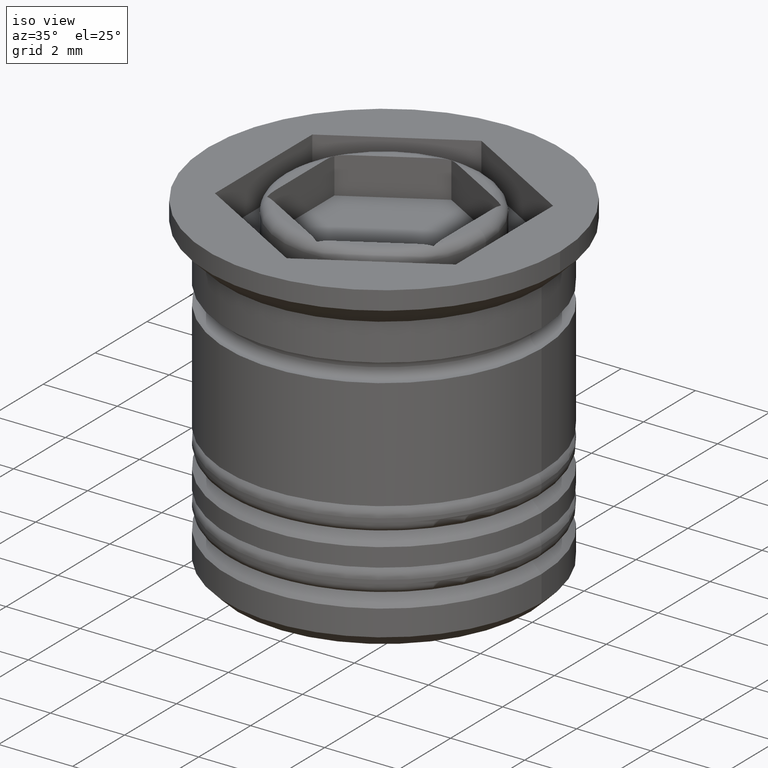
[diagram: clean part render]
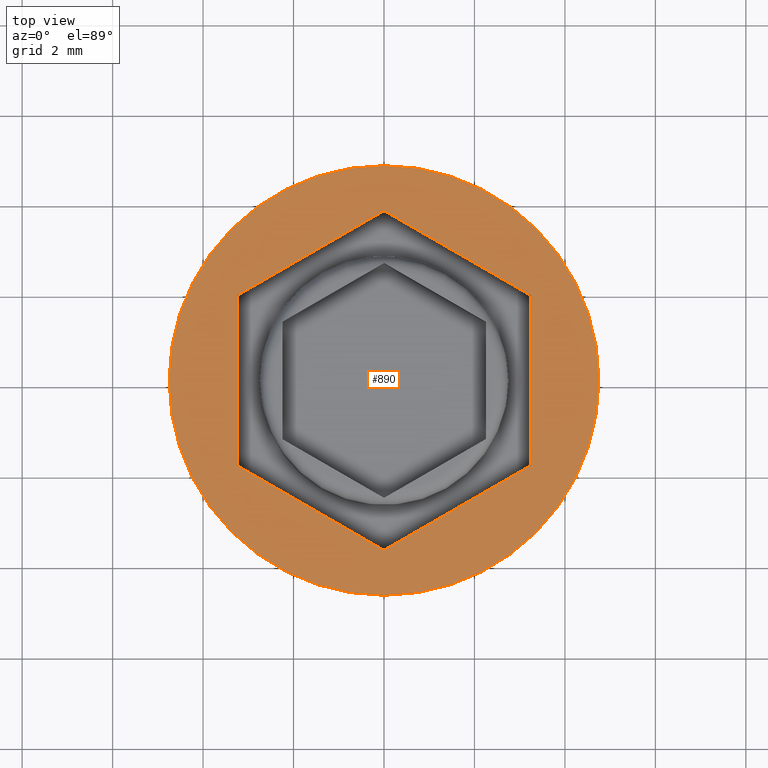
[diagram: tour spotlight — one face highlighted and labeled with its STEP entity id]
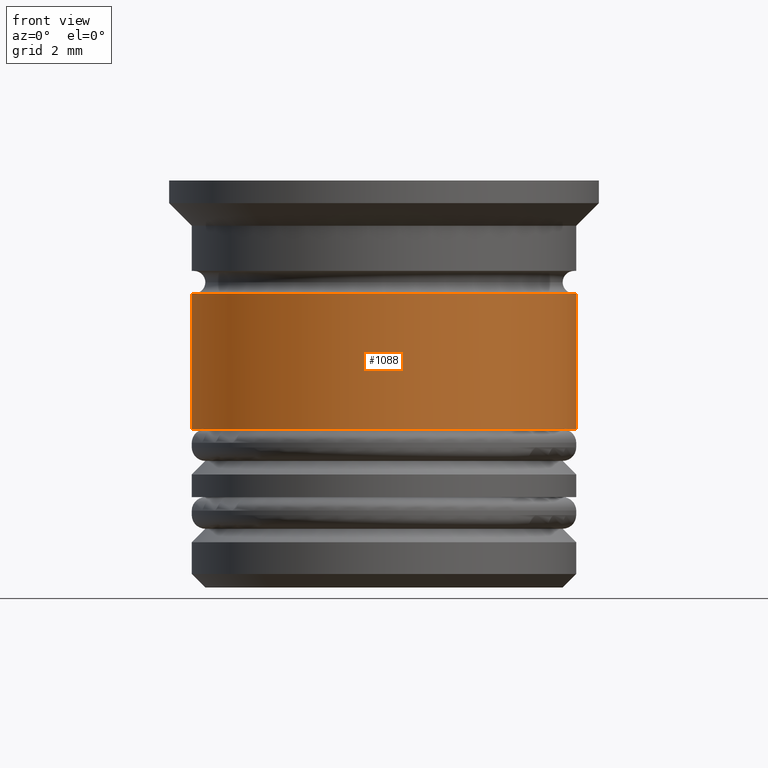
[diagram: tour spotlight — one face highlighted and labeled with its STEP entity id]
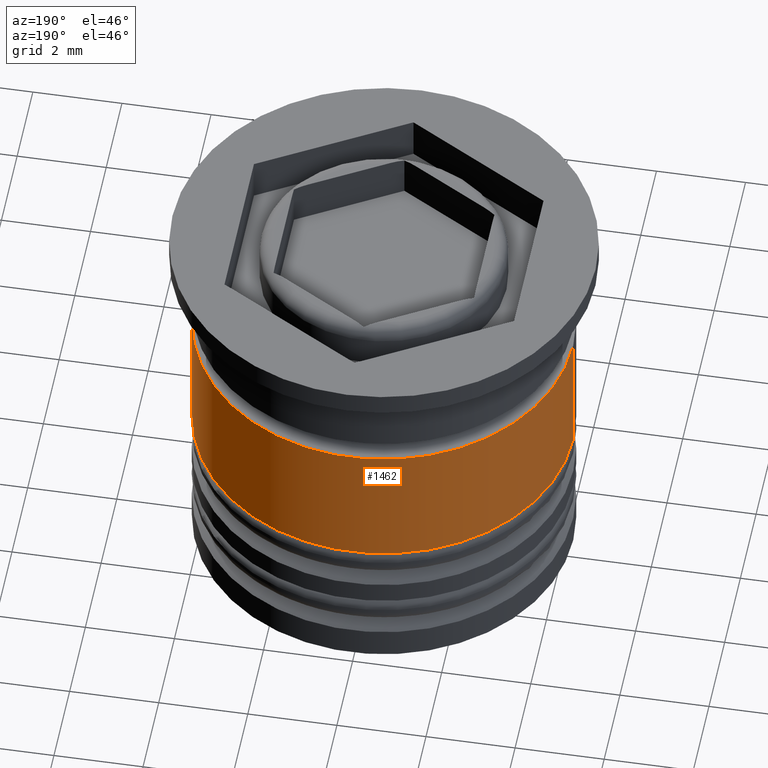
[diagram: tour spotlight — one face highlighted and labeled with its STEP entity id]
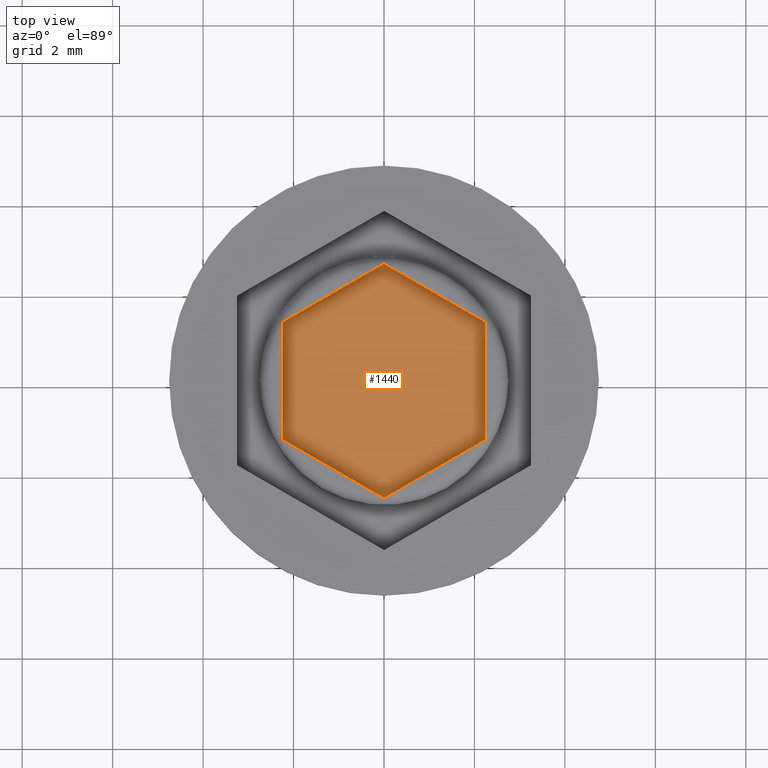
[diagram: tour spotlight — one face highlighted and labeled with its STEP entity id]
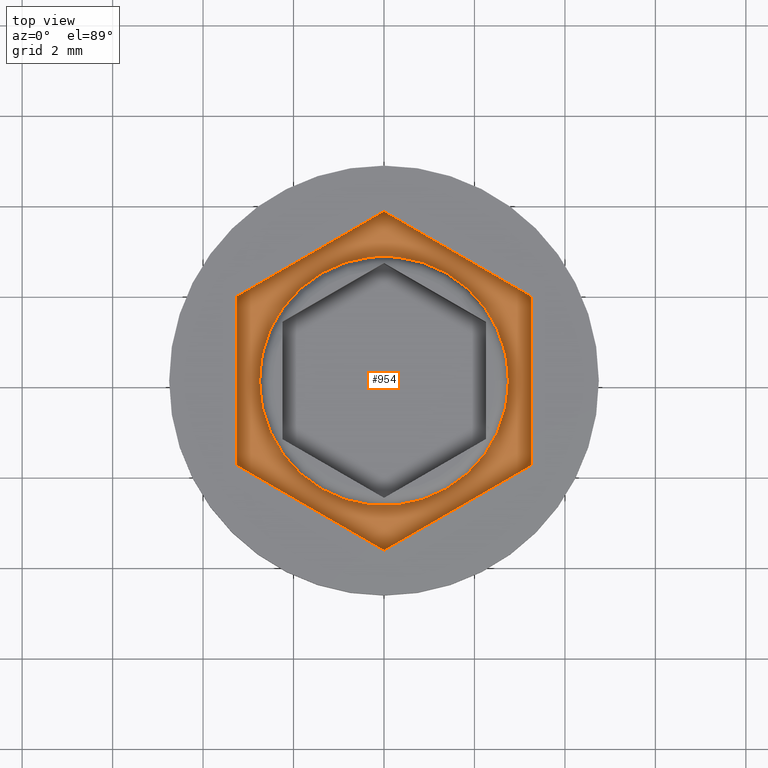
[diagram: tour spotlight — one face highlighted and labeled with its STEP entity id]
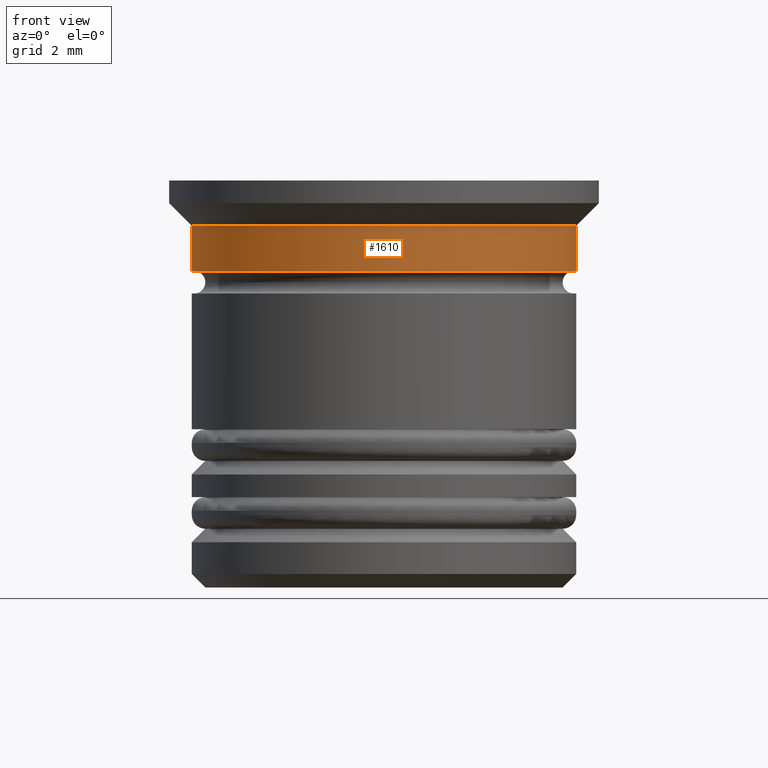
[diagram: tour spotlight — one face highlighted and labeled with its STEP entity id]
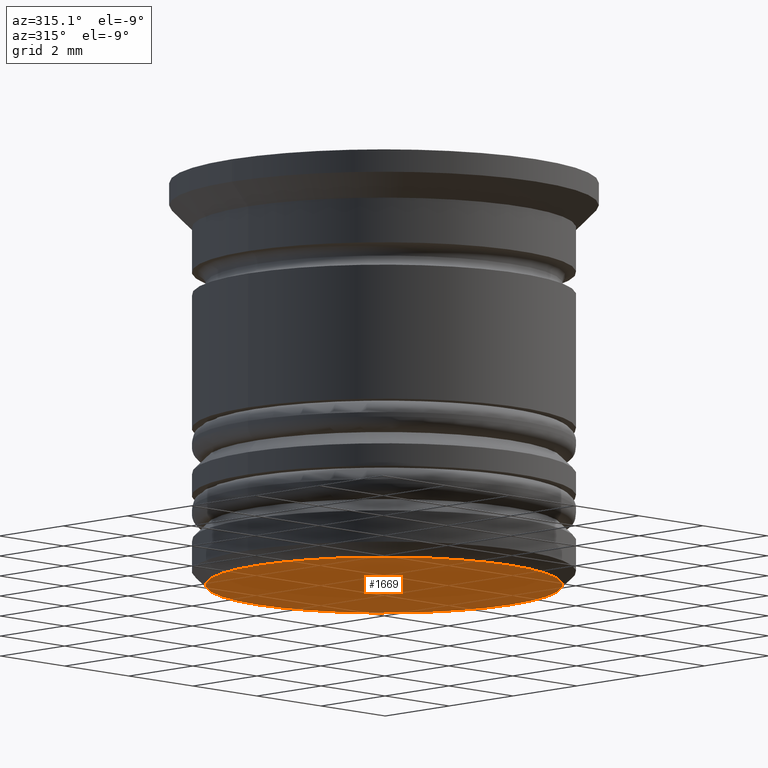
[diagram: tour spotlight — one face highlighted and labeled with its STEP entity id]
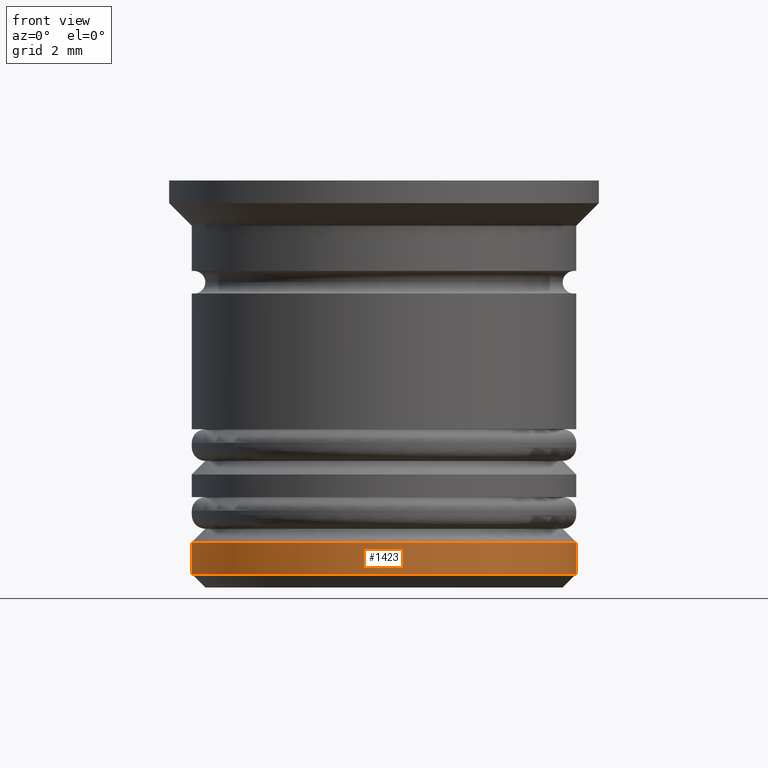
[diagram: tour spotlight — one face highlighted and labeled with its STEP entity id]
A machine part: a face-by-face anatomy tour. The part has 72 B-rep faces; the first image is the clean iso view, then the 8 largest visible faces are spotlighted one at a time (largest first), each with its STEP entity span.

Face 1 — top view, entity #890. In plain terms, the highlighted planar face has unit normal (0, -0, 1).
Definition (entity closure, byte-faithful):
#15 = CARTESIAN_POINT ( 'NONE',  ( -3.250000000000000000, 1.876388374866282627, 0.000000000000000000 ) ) ;
#47 = ORIENTED_EDGE ( 'NONE', *, *, #1774, .T. ) ;
#50 = ORIENTED_EDGE ( 'NONE', *, *, #789, .F. ) ;
#144 = EDGE_CURVE ( 'NONE', #440, #897, #1932, .T. ) ;
#152 = CARTESIAN_POINT ( 'NONE',  ( 0.000000000000000000, 0.000000000000000000, 0.000000000000000000 ) ) ;
#189 = CIRCLE ( 'NONE', #1198, 4.750000000000000000 ) ;
#199 = LINE ( 'NONE', #1099, #1139 ) ;
#228 = EDGE_LOOP ( 'NONE', ( #47, #399 ) ) ;
#251 = DIRECTION ( 'NONE',  ( 0.000000000000000000, 1.000000000000000000, -0.000000000000000000 ) ) ;
#306 = DIRECTION ( 'NONE',  ( -0.8660254037844387076, 0.4999999999999998890, 0.000000000000000000 ) ) ;
#330 = DIRECTION ( 'NONE',  ( 0.000000000000000000, -0.000000000000000000, 1.000000000000000000 ) ) ;
#339 = DIRECTION ( 'NONE',  ( 1.000000000000000000, 0.000000000000000000, 0.000000000000000000 ) ) ;
#396 = EDGE_CURVE ( 'NONE', #523, #1285, #409, .T. ) ;
#399 = ORIENTED_EDGE ( 'NONE', *, *, #396, .T. ) ;
#409 = CIRCLE ( 'NONE', #1931, 4.750000000000000000 ) ;
#426 = VERTEX_POINT ( 'NONE', #907 ) ;
#439 = VERTEX_POINT ( 'NONE', #1553 ) ;
#440 = VERTEX_POINT ( 'NONE', #1111 ) ;
#465 = DIRECTION ( 'NONE',  ( 1.000000000000000000, 0.000000000000000000, 0.000000000000000000 ) ) ;
#506 = VECTOR ( 'NONE', #1477, 1000.000000000000000 ) ;
#523 = VERTEX_POINT ( 'NONE', #1151 ) ;
#566 = DIRECTION ( 'NONE',  ( 0.8660254037844385966, -0.4999999999999998890, 0.000000000000000000 ) ) ;
#637 = EDGE_CURVE ( 'NONE', #426, #1851, #1651, .T. ) ;
#692 = LINE ( 'NONE', #864, #506 ) ;
#710 = VERTEX_POINT ( 'NONE', #1635 ) ;
#760 = CARTESIAN_POINT ( 'NONE',  ( -3.250000000000000000, 3.755786496842899057E-16, 0.000000000000000000 ) ) ;
#762 = LINE ( 'NONE', #1976, #1673 ) ;
#789 = EDGE_CURVE ( 'NONE', #897, #710, #1055, .T. ) ;
#800 = PLANE ( 'NONE',  #1742 ) ;
#849 = VECTOR ( 'NONE', #251, 1000.000000000000000 ) ;
#864 = CARTESIAN_POINT ( 'NONE',  ( 1.625000000000000222, -2.814582562299424939, 0.000000000000000000 ) ) ;
#890 = ADVANCED_FACE ( 'NONE', ( #959, #1573 ), #800, .T. ) ;
#897 = VERTEX_POINT ( 'NONE', #15 ) ;
#907 = CARTESIAN_POINT ( 'NONE',  ( 3.249999999999999556, -1.876388374866283071, 0.000000000000000000 ) ) ;
#908 = CARTESIAN_POINT ( 'NONE',  ( 0.000000000000000000, 0.000000000000000000, 0.000000000000000000 ) ) ;
#941 = EDGE_LOOP ( 'NONE', ( #1114, #1801, #1146, #50, #1843, #1988 ) ) ;
#959 = FACE_BOUND ( 'NONE', #941, .T. ) ;
#974 = DIRECTION ( 'NONE',  ( -0.8660254037844384856, -0.5000000000000002220, 0.000000000000000000 ) ) ;
#1055 = LINE ( 'NONE', #760, #1402 ) ;
#1099 = CARTESIAN_POINT ( 'NONE',  ( 1.624999999999999556, 2.814582562299425827, 0.000000000000000000 ) ) ;
#1111 = CARTESIAN_POINT ( 'NONE',  ( 0.000000000000000000, 3.752776749732567474, 0.000000000000000000 ) ) ;
#1114 = ORIENTED_EDGE ( 'NONE', *, *, #637, .F. ) ;
#1139 = VECTOR ( 'NONE', #306, 1000.000000000000114 ) ;
#1146 = ORIENTED_EDGE ( 'NONE', *, *, #1310, .F. ) ;
#1151 = CARTESIAN_POINT ( 'NONE',  ( -4.750000000000000000, 5.817072295949927426E-16, 0.000000000000000000 ) ) ;
#1198 = AXIS2_PLACEMENT_3D ( 'NONE', #908, #1672, #1680 ) ;
#1219 = DIRECTION ( 'NONE',  ( -1.155626614413199824E-16, -1.000000000000000000, 0.000000000000000000 ) ) ;
#1281 = CARTESIAN_POINT ( 'NONE',  ( 0.000000000000000000, 0.000000000000000000, 0.000000000000000000 ) ) ;
#1285 = VERTEX_POINT ( 'NONE', #1546 ) ;
#1310 = EDGE_CURVE ( 'NONE', #710, #439, #762, .T. ) ;
#1402 = VECTOR ( 'NONE', #1219, 1000.000000000000000 ) ;
#1444 = CARTESIAN_POINT ( 'NONE',  ( -1.625000000000000444, 2.814582562299424939, 0.000000000000000000 ) ) ;
#1477 = DIRECTION ( 'NONE',  ( 0.8660254037844385966, 0.5000000000000001110, 0.000000000000000000 ) ) ;
#1527 = EDGE_CURVE ( 'NONE', #439, #426, #692, .T. ) ;
#1546 = CARTESIAN_POINT ( 'NONE',  ( 4.750000000000000000, 0.000000000000000000, 0.000000000000000000 ) ) ;
#1553 = CARTESIAN_POINT ( 'NONE',  ( 0.000000000000000000, -3.752776749732567030, 0.000000000000000000 ) ) ;
#1573 = FACE_OUTER_BOUND ( 'NONE', #228, .T. ) ;
#1635 = CARTESIAN_POINT ( 'NONE',  ( -3.250000000000000444, -1.876388374866283515, 0.000000000000000000 ) ) ;
#1651 = LINE ( 'NONE', #1822, #849 ) ;
#1672 = DIRECTION ( 'NONE',  ( -0.000000000000000000, -0.000000000000000000, 1.000000000000000000 ) ) ;
#1673 = VECTOR ( 'NONE', #566, 1000.000000000000227 ) ;
#1680 = DIRECTION ( 'NONE',  ( 1.000000000000000000, 0.000000000000000000, 0.000000000000000000 ) ) ;
#1696 = VECTOR ( 'NONE', #974, 1000.000000000000114 ) ;
#1742 = AXIS2_PLACEMENT_3D ( 'NONE', #1281, #330, #339 ) ;
#1774 = EDGE_CURVE ( 'NONE', #1285, #523, #189, .T. ) ;
#1801 = ORIENTED_EDGE ( 'NONE', *, *, #1527, .F. ) ;
#1822 = CARTESIAN_POINT ( 'NONE',  ( 3.249999999999999556, 0.000000000000000000, 0.000000000000000000 ) ) ;
#1843 = ORIENTED_EDGE ( 'NONE', *, *, #144, .F. ) ;
#1851 = VERTEX_POINT ( 'NONE', #1986 ) ;
#1887 = DIRECTION ( 'NONE',  ( -0.000000000000000000, -0.000000000000000000, 1.000000000000000000 ) ) ;
#1931 = AXIS2_PLACEMENT_3D ( 'NONE', #152, #1887, #465 ) ;
#1932 = LINE ( 'NONE', #1444, #1696 ) ;
#1976 = CARTESIAN_POINT ( 'NONE',  ( -1.624999999999999778, -2.814582562299425827, 0.000000000000000000 ) ) ;
#1986 = CARTESIAN_POINT ( 'NONE',  ( 3.249999999999999556, 1.876388374866283515, 0.000000000000000000 ) ) ;
#1988 = ORIENTED_EDGE ( 'NONE', *, *, #2007, .F. ) ;
#2007 = EDGE_CURVE ( 'NONE', #1851, #440, #199, .T. ) ;

Face 2 — front view, entity #1088. In plain terms, the highlighted cylindrical surface (partial cylindrical patch) has radius 4.25 mm, axis along (-0, -0, 1).
Definition (entity closure, byte-faithful):
#55 = EDGE_CURVE ( 'NONE', #1716, #1460, #570, .T. ) ;
#125 = LINE ( 'NONE', #274, #245 ) ;
#245 = VECTOR ( 'NONE', #1850, 1000.000000000000000 ) ;
#258 = CARTESIAN_POINT ( 'NONE',  ( 0.000000000000000000, 0.000000000000000000, 0.000000000000000000 ) ) ;
#274 = CARTESIAN_POINT ( 'NONE',  ( -4.250000000000000000, 5.204748896376250699E-16, 0.000000000000000000 ) ) ;
#366 = ORIENTED_EDGE ( 'NONE', *, *, #55, .F. ) ;
#404 = DIRECTION ( 'NONE',  ( -0.000000000000000000, -0.000000000000000000, 1.000000000000000000 ) ) ;
#486 = CARTESIAN_POINT ( 'NONE',  ( 0.000000000000000000, 0.000000000000000000, -5.500000000000000000 ) ) ;
#493 = DIRECTION ( 'NONE',  ( 1.000000000000000000, 0.000000000000000000, 0.000000000000000000 ) ) ;
#503 = LINE ( 'NONE', #844, #1269 ) ;
#536 = AXIS2_PLACEMENT_3D ( 'NONE', #1985, #404, #568 ) ;
#568 = DIRECTION ( 'NONE',  ( 1.000000000000000000, 0.000000000000000000, 0.000000000000000000 ) ) ;
#570 = CIRCLE ( 'NONE', #536, 4.250000000000000000 ) ;
#638 = CARTESIAN_POINT ( 'NONE',  ( 4.250000000000000000, 0.000000000000000000, -2.499999999999998668 ) ) ;
#708 = DIRECTION ( 'NONE',  ( -0.000000000000000000, -0.000000000000000000, 1.000000000000000000 ) ) ;
#813 = CARTESIAN_POINT ( 'NONE',  ( 4.250000000000000000, 0.000000000000000000, -5.500000000000000000 ) ) ;
#844 = CARTESIAN_POINT ( 'NONE',  ( 4.250000000000000000, 0.000000000000000000, 0.000000000000000000 ) ) ;
#884 = AXIS2_PLACEMENT_3D ( 'NONE', #486, #1615, #493 ) ;
#893 = EDGE_CURVE ( 'NONE', #1108, #1389, #1702, .T. ) ;
#894 = DIRECTION ( 'NONE',  ( -0.000000000000000000, -0.000000000000000000, 1.000000000000000000 ) ) ;
#919 = ORIENTED_EDGE ( 'NONE', *, *, #1565, .T. ) ;
#1088 = ADVANCED_FACE ( 'NONE', ( #1818 ), #1193, .T. ) ;
#1108 = VERTEX_POINT ( 'NONE', #1492 ) ;
#1137 = ORIENTED_EDGE ( 'NONE', *, *, #893, .T. ) ;
#1177 = DIRECTION ( 'NONE',  ( 1.000000000000000000, 0.000000000000000000, 0.000000000000000000 ) ) ;
#1193 = CYLINDRICAL_SURFACE ( 'NONE', #1241, 4.250000000000000000 ) ;
#1241 = AXIS2_PLACEMENT_3D ( 'NONE', #258, #894, #1177 ) ;
#1269 = VECTOR ( 'NONE', #708, 1000.000000000000000 ) ;
#1389 = VERTEX_POINT ( 'NONE', #813 ) ;
#1460 = VERTEX_POINT ( 'NONE', #638 ) ;
#1492 = CARTESIAN_POINT ( 'NONE',  ( -4.250000000000000000, 5.204748896376250699E-16, -5.500000000000000000 ) ) ;
#1565 = EDGE_CURVE ( 'NONE', #1389, #1460, #503, .T. ) ;
#1615 = DIRECTION ( 'NONE',  ( -0.000000000000000000, -0.000000000000000000, 1.000000000000000000 ) ) ;
#1702 = CIRCLE ( 'NONE', #884, 4.250000000000000000 ) ;
#1705 = ORIENTED_EDGE ( 'NONE', *, *, #1833, .F. ) ;
#1716 = VERTEX_POINT ( 'NONE', #1981 ) ;
#1765 = EDGE_LOOP ( 'NONE', ( #1705, #1137, #919, #366 ) ) ;
#1818 = FACE_OUTER_BOUND ( 'NONE', #1765, .T. ) ;
#1833 = EDGE_CURVE ( 'NONE', #1108, #1716, #125, .T. ) ;
#1850 = DIRECTION ( 'NONE',  ( -0.000000000000000000, -0.000000000000000000, 1.000000000000000000 ) ) ;
#1981 = CARTESIAN_POINT ( 'NONE',  ( -4.250000000000000000, 5.204748896376250699E-16, -2.499999999999998668 ) ) ;
#1985 = CARTESIAN_POINT ( 'NONE',  ( 0.000000000000000000, 0.000000000000000000, -2.499999999999998668 ) ) ;

Face 3 — auxiliary view, entity #1462. In plain terms, the highlighted cylindrical surface (partial cylindrical patch) has radius 4.25 mm, axis along (-0, -0, 1).
Definition (entity closure, byte-faithful):
#125 = LINE ( 'NONE', #274, #245 ) ;
#188 = DIRECTION ( 'NONE',  ( -0.000000000000000000, -0.000000000000000000, 1.000000000000000000 ) ) ;
#202 = DIRECTION ( 'NONE',  ( -0.000000000000000000, -0.000000000000000000, 1.000000000000000000 ) ) ;
#218 = AXIS2_PLACEMENT_3D ( 'NONE', #495, #1390, #2022 ) ;
#245 = VECTOR ( 'NONE', #1850, 1000.000000000000000 ) ;
#250 = CIRCLE ( 'NONE', #1505, 4.250000000000000000 ) ;
#274 = CARTESIAN_POINT ( 'NONE',  ( -4.250000000000000000, 5.204748896376250699E-16, 0.000000000000000000 ) ) ;
#359 = ORIENTED_EDGE ( 'NONE', *, *, #1002, .F. ) ;
#495 = CARTESIAN_POINT ( 'NONE',  ( 0.000000000000000000, 0.000000000000000000, 0.000000000000000000 ) ) ;
#503 = LINE ( 'NONE', #844, #1269 ) ;
#549 = ORIENTED_EDGE ( 'NONE', *, *, #1833, .T. ) ;
#614 = AXIS2_PLACEMENT_3D ( 'NONE', #1734, #188, #1612 ) ;
#638 = CARTESIAN_POINT ( 'NONE',  ( 4.250000000000000000, 0.000000000000000000, -2.499999999999998668 ) ) ;
#708 = DIRECTION ( 'NONE',  ( -0.000000000000000000, -0.000000000000000000, 1.000000000000000000 ) ) ;
#769 = FACE_OUTER_BOUND ( 'NONE', #1917, .T. ) ;
#813 = CARTESIAN_POINT ( 'NONE',  ( 4.250000000000000000, 0.000000000000000000, -5.500000000000000000 ) ) ;
#843 = ORIENTED_EDGE ( 'NONE', *, *, #1971, .T. ) ;
#844 = CARTESIAN_POINT ( 'NONE',  ( 4.250000000000000000, 0.000000000000000000, 0.000000000000000000 ) ) ;
#1002 = EDGE_CURVE ( 'NONE', #1460, #1716, #250, .T. ) ;
#1108 = VERTEX_POINT ( 'NONE', #1492 ) ;
#1269 = VECTOR ( 'NONE', #708, 1000.000000000000000 ) ;
#1389 = VERTEX_POINT ( 'NONE', #813 ) ;
#1390 = DIRECTION ( 'NONE',  ( -0.000000000000000000, -0.000000000000000000, 1.000000000000000000 ) ) ;
#1456 = DIRECTION ( 'NONE',  ( 1.000000000000000000, 0.000000000000000000, 0.000000000000000000 ) ) ;
#1460 = VERTEX_POINT ( 'NONE', #638 ) ;
#1462 = ADVANCED_FACE ( 'NONE', ( #769 ), #1886, .T. ) ;
#1492 = CARTESIAN_POINT ( 'NONE',  ( -4.250000000000000000, 5.204748896376250699E-16, -5.500000000000000000 ) ) ;
#1505 = AXIS2_PLACEMENT_3D ( 'NONE', #1745, #202, #1456 ) ;
#1565 = EDGE_CURVE ( 'NONE', #1389, #1460, #503, .T. ) ;
#1569 = CIRCLE ( 'NONE', #614, 4.250000000000000000 ) ;
#1612 = DIRECTION ( 'NONE',  ( 1.000000000000000000, 0.000000000000000000, 0.000000000000000000 ) ) ;
#1716 = VERTEX_POINT ( 'NONE', #1981 ) ;
#1734 = CARTESIAN_POINT ( 'NONE',  ( 0.000000000000000000, 0.000000000000000000, -5.500000000000000000 ) ) ;
#1745 = CARTESIAN_POINT ( 'NONE',  ( 0.000000000000000000, 0.000000000000000000, -2.499999999999998668 ) ) ;
#1833 = EDGE_CURVE ( 'NONE', #1108, #1716, #125, .T. ) ;
#1850 = DIRECTION ( 'NONE',  ( -0.000000000000000000, -0.000000000000000000, 1.000000000000000000 ) ) ;
#1881 = ORIENTED_EDGE ( 'NONE', *, *, #1565, .F. ) ;
#1886 = CYLINDRICAL_SURFACE ( 'NONE', #218, 4.250000000000000000 ) ;
#1917 = EDGE_LOOP ( 'NONE', ( #843, #549, #359, #1881 ) ) ;
#1971 = EDGE_CURVE ( 'NONE', #1389, #1108, #1569, .T. ) ;
#1981 = CARTESIAN_POINT ( 'NONE',  ( -4.250000000000000000, 5.204748896376250699E-16, -2.499999999999998668 ) ) ;
#2022 = DIRECTION ( 'NONE',  ( 1.000000000000000000, 0.000000000000000000, 0.000000000000000000 ) ) ;

Face 4 — top view, entity #1440. In plain terms, the highlighted planar face has unit normal (-0, 0, 1).
Definition (entity closure, byte-faithful):
#8 = ORIENTED_EDGE ( 'NONE', *, *, #609, .F. ) ;
#48 = CARTESIAN_POINT ( 'NONE',  ( 4.336808689942017736E-16, -2.598076211353315568, -1.000000000000000000 ) ) ;
#56 = CARTESIAN_POINT ( 'NONE',  ( 2.249999999999999556, 1.299038105676657784, -1.000000000000000000 ) ) ;
#64 = ORIENTED_EDGE ( 'NONE', *, *, #1970, .F. ) ;
#139 = CARTESIAN_POINT ( 'NONE',  ( 2.249999999999999556, 1.299038105676658228, -1.000000000000000000 ) ) ;
#155 = ORIENTED_EDGE ( 'NONE', *, *, #363, .F. ) ;
#186 = VERTEX_POINT ( 'NONE', #56 ) ;
#290 = VERTEX_POINT ( 'NONE', #1977 ) ;
#363 = EDGE_CURVE ( 'NONE', #1914, #186, #1576, .T. ) ;
#425 = CARTESIAN_POINT ( 'NONE',  ( -2.249999999999999556, -1.299038105676657784, -1.000000000000000000 ) ) ;
#443 = VECTOR ( 'NONE', #1516, 1000.000000000000000 ) ;
#448 = AXIS2_PLACEMENT_3D ( 'NONE', #792, #969, #1594 ) ;
#467 = CARTESIAN_POINT ( 'NONE',  ( 0.000000000000000000, 2.598076211353315568, -1.000000000000000000 ) ) ;
#490 = DIRECTION ( 'NONE',  ( 0.000000000000000000, -1.000000000000000000, 0.000000000000000000 ) ) ;
#609 = EDGE_CURVE ( 'NONE', #1544, #768, #1974, .T. ) ;
#702 = EDGE_LOOP ( 'NONE', ( #155, #64, #1589, #8, #1532, #1515 ) ) ;
#759 = DIRECTION ( 'NONE',  ( -0.8660254037844385966, -0.5000000000000001110, 0.000000000000000000 ) ) ;
#768 = VERTEX_POINT ( 'NONE', #425 ) ;
#792 = CARTESIAN_POINT ( 'NONE',  ( 0.000000000000000000, 0.000000000000000000, -1.000000000000000000 ) ) ;
#806 = CARTESIAN_POINT ( 'NONE',  ( 0.000000000000000000, 2.598076211353315568, -1.000000000000000000 ) ) ;
#819 = CARTESIAN_POINT ( 'NONE',  ( 2.249999999999999556, -1.299038105676657340, -1.000000000000000000 ) ) ;
#969 = DIRECTION ( 'NONE',  ( -0.000000000000000000, 0.000000000000000000, 1.000000000000000000 ) ) ;
#989 = CARTESIAN_POINT ( 'NONE',  ( 2.249999999999999556, -1.299038105676657562, -1.000000000000000000 ) ) ;
#1000 = VERTEX_POINT ( 'NONE', #989 ) ;
#1082 = LINE ( 'NONE', #1526, #443 ) ;
#1286 = LINE ( 'NONE', #819, #2026 ) ;
#1348 = CARTESIAN_POINT ( 'NONE',  ( -2.249999999999999556, -1.299038105676658228, -1.000000000000000000 ) ) ;
#1361 = VECTOR ( 'NONE', #759, 1000.000000000000000 ) ;
#1378 = CARTESIAN_POINT ( 'NONE',  ( -1.671110122936318010E-17, -2.598076211353315568, -1.000000000000000000 ) ) ;
#1409 = LINE ( 'NONE', #467, #1803 ) ;
#1415 = PLANE ( 'NONE',  #448 ) ;
#1438 = FACE_OUTER_BOUND ( 'NONE', #702, .T. ) ;
#1440 = ADVANCED_FACE ( 'NONE', ( #1438 ), #1415, .T. ) ;
#1515 = ORIENTED_EDGE ( 'NONE', *, *, #1948, .F. ) ;
#1516 = DIRECTION ( 'NONE',  ( 0.000000000000000000, 1.000000000000000000, 0.000000000000000000 ) ) ;
#1526 = CARTESIAN_POINT ( 'NONE',  ( -2.249999999999999556, 1.299038105676657340, -1.000000000000000000 ) ) ;
#1532 = ORIENTED_EDGE ( 'NONE', *, *, #1629, .F. ) ;
#1542 = LINE ( 'NONE', #1378, #1361 ) ;
#1544 = VERTEX_POINT ( 'NONE', #48 ) ;
#1576 = LINE ( 'NONE', #139, #2027 ) ;
#1589 = ORIENTED_EDGE ( 'NONE', *, *, #1797, .F. ) ;
#1594 = DIRECTION ( 'NONE',  ( 1.000000000000000000, 0.000000000000000000, 0.000000000000000000 ) ) ;
#1629 = EDGE_CURVE ( 'NONE', #1000, #1544, #1542, .T. ) ;
#1722 = DIRECTION ( 'NONE',  ( 0.8660254037844387076, -0.4999999999999998335, 0.000000000000000000 ) ) ;
#1797 = EDGE_CURVE ( 'NONE', #768, #290, #1082, .T. ) ;
#1803 = VECTOR ( 'NONE', #1918, 1000.000000000000000 ) ;
#1830 = DIRECTION ( 'NONE',  ( -0.8660254037844387076, 0.4999999999999998335, 0.000000000000000000 ) ) ;
#1869 = VECTOR ( 'NONE', #1830, 1000.000000000000114 ) ;
#1914 = VERTEX_POINT ( 'NONE', #806 ) ;
#1918 = DIRECTION ( 'NONE',  ( 0.8660254037844385966, 0.5000000000000001110, 0.000000000000000000 ) ) ;
#1948 = EDGE_CURVE ( 'NONE', #186, #1000, #1286, .T. ) ;
#1970 = EDGE_CURVE ( 'NONE', #290, #1914, #1409, .T. ) ;
#1974 = LINE ( 'NONE', #1348, #1869 ) ;
#1977 = CARTESIAN_POINT ( 'NONE',  ( -2.249999999999999556, 1.299038105676657340, -1.000000000000000000 ) ) ;
#2026 = VECTOR ( 'NONE', #490, 1000.000000000000000 ) ;
#2027 = VECTOR ( 'NONE', #1722, 1000.000000000000114 ) ;

Face 5 — top view, entity #954. In plain terms, the highlighted planar face has unit normal (-0, 0, 1).
Definition (entity closure, byte-faithful):
#37 = DIRECTION ( 'NONE',  ( -0.000000000000000000, 0.000000000000000000, 1.000000000000000000 ) ) ;
#39 = CARTESIAN_POINT ( 'NONE',  ( 1.625000000000000222, -2.814582562299424939, -1.000000000000000000 ) ) ;
#68 = DIRECTION ( 'NONE',  ( -0.000000000000000000, 0.000000000000000000, 1.000000000000000000 ) ) ;
#95 = CARTESIAN_POINT ( 'NONE',  ( -3.250000000000000000, 3.755786496842899057E-16, -1.000000000000000000 ) ) ;
#137 = VERTEX_POINT ( 'NONE', #1943 ) ;
#194 = DIRECTION ( 'NONE',  ( 1.000000000000000000, 0.000000000000000000, 0.000000000000000000 ) ) ;
#205 = DIRECTION ( 'NONE',  ( -0.000000000000000000, 0.000000000000000000, 1.000000000000000000 ) ) ;
#212 = CARTESIAN_POINT ( 'NONE',  ( -3.250000000000000444, -1.876388374866283515, -1.000000000000000000 ) ) ;
#292 = CARTESIAN_POINT ( 'NONE',  ( 3.249999999999999556, 1.876388374866284403, -1.000000000000000000 ) ) ;
#321 = FACE_OUTER_BOUND ( 'NONE', #1619, .T. ) ;
#323 = CARTESIAN_POINT ( 'NONE',  ( 0.000000000000000000, -3.752776749732567030, -1.000000000000000000 ) ) ;
#333 = CARTESIAN_POINT ( 'NONE',  ( -3.250000000000000000, 1.876388374866282627, -1.000000000000000000 ) ) ;
#342 = LINE ( 'NONE', #804, #1631 ) ;
#454 = DIRECTION ( 'NONE',  ( 0.8660254037844385966, -0.4999999999999998890, 0.000000000000000000 ) ) ;
#476 = CIRCLE ( 'NONE', #1041, 2.750000000000000000 ) ;
#498 = VERTEX_POINT ( 'NONE', #333 ) ;
#502 = EDGE_CURVE ( 'NONE', #137, #1066, #476, .T. ) ;
#514 = EDGE_CURVE ( 'NONE', #633, #832, #342, .T. ) ;
#524 = LINE ( 'NONE', #95, #1199 ) ;
#528 = VERTEX_POINT ( 'NONE', #212 ) ;
#541 = ORIENTED_EDGE ( 'NONE', *, *, #1762, .T. ) ;
#554 = CARTESIAN_POINT ( 'NONE',  ( 3.249999999999999556, -1.876388374866283071, -1.000000000000000000 ) ) ;
#573 = EDGE_CURVE ( 'NONE', #498, #528, #524, .T. ) ;
#578 = ORIENTED_EDGE ( 'NONE', *, *, #502, .F. ) ;
#633 = VERTEX_POINT ( 'NONE', #554 ) ;
#653 = VECTOR ( 'NONE', #454, 1000.000000000000227 ) ;
#669 = DIRECTION ( 'NONE',  ( 1.000000000000000000, 0.000000000000000000, 0.000000000000000000 ) ) ;
#682 = AXIS2_PLACEMENT_3D ( 'NONE', #1302, #68, #669 ) ;
#699 = LINE ( 'NONE', #39, #848 ) ;
#804 = CARTESIAN_POINT ( 'NONE',  ( 3.249999999999999556, 0.000000000000000000, -1.000000000000000000 ) ) ;
#824 = EDGE_LOOP ( 'NONE', ( #1405, #578 ) ) ;
#832 = VERTEX_POINT ( 'NONE', #292 ) ;
#837 = DIRECTION ( 'NONE',  ( 1.000000000000000000, 0.000000000000000000, 0.000000000000000000 ) ) ;
#848 = VECTOR ( 'NONE', #1632, 1000.000000000000000 ) ;
#856 = EDGE_CURVE ( 'NONE', #528, #1494, #2020, .T. ) ;
#952 = CIRCLE ( 'NONE', #682, 2.750000000000000000 ) ;
#954 = ADVANCED_FACE ( 'NONE', ( #1764, #321 ), #1299, .T. ) ;
#970 = DIRECTION ( 'NONE',  ( 0.000000000000000000, 1.000000000000000000, -0.000000000000000000 ) ) ;
#1013 = VECTOR ( 'NONE', #1768, 1000.000000000000114 ) ;
#1041 = AXIS2_PLACEMENT_3D ( 'NONE', #1748, #205, #837 ) ;
#1042 = LINE ( 'NONE', #1538, #1072 ) ;
#1066 = VERTEX_POINT ( 'NONE', #1972 ) ;
#1072 = VECTOR ( 'NONE', #1192, 1000.000000000000114 ) ;
#1174 = AXIS2_PLACEMENT_3D ( 'NONE', #1445, #37, #194 ) ;
#1188 = DIRECTION ( 'NONE',  ( -1.155626614413199824E-16, -1.000000000000000000, 0.000000000000000000 ) ) ;
#1192 = DIRECTION ( 'NONE',  ( -0.8660254037844384856, -0.5000000000000002220, 0.000000000000000000 ) ) ;
#1199 = VECTOR ( 'NONE', #1188, 1000.000000000000000 ) ;
#1299 = PLANE ( 'NONE',  #1174 ) ;
#1302 = CARTESIAN_POINT ( 'NONE',  ( 0.000000000000000000, 0.000000000000000000, -1.000000000000000000 ) ) ;
#1349 = ORIENTED_EDGE ( 'NONE', *, *, #1582, .T. ) ;
#1387 = ORIENTED_EDGE ( 'NONE', *, *, #514, .T. ) ;
#1405 = ORIENTED_EDGE ( 'NONE', *, *, #1591, .F. ) ;
#1445 = CARTESIAN_POINT ( 'NONE',  ( 0.000000000000000000, 0.000000000000000000, -1.000000000000000000 ) ) ;
#1494 = VERTEX_POINT ( 'NONE', #323 ) ;
#1512 = ORIENTED_EDGE ( 'NONE', *, *, #856, .T. ) ;
#1538 = CARTESIAN_POINT ( 'NONE',  ( -1.625000000000000444, 2.814582562299424939, -1.000000000000000000 ) ) ;
#1582 = EDGE_CURVE ( 'NONE', #1494, #633, #699, .T. ) ;
#1591 = EDGE_CURVE ( 'NONE', #1066, #137, #952, .T. ) ;
#1613 = VERTEX_POINT ( 'NONE', #1780 ) ;
#1619 = EDGE_LOOP ( 'NONE', ( #1387, #1911, #541, #1694, #1512, #1349 ) ) ;
#1631 = VECTOR ( 'NONE', #970, 1000.000000000000000 ) ;
#1632 = DIRECTION ( 'NONE',  ( 0.8660254037844385966, 0.5000000000000001110, 0.000000000000000000 ) ) ;
#1694 = ORIENTED_EDGE ( 'NONE', *, *, #573, .T. ) ;
#1748 = CARTESIAN_POINT ( 'NONE',  ( 0.000000000000000000, 0.000000000000000000, -1.000000000000000000 ) ) ;
#1760 = CARTESIAN_POINT ( 'NONE',  ( 1.624999999999999556, 2.814582562299425827, -1.000000000000000000 ) ) ;
#1762 = EDGE_CURVE ( 'NONE', #1613, #498, #1042, .T. ) ;
#1764 = FACE_BOUND ( 'NONE', #824, .T. ) ;
#1768 = DIRECTION ( 'NONE',  ( -0.8660254037844387076, 0.4999999999999998890, 0.000000000000000000 ) ) ;
#1780 = CARTESIAN_POINT ( 'NONE',  ( 0.000000000000000000, 3.752776749732567474, -1.000000000000000000 ) ) ;
#1876 = CARTESIAN_POINT ( 'NONE',  ( -1.624999999999999778, -2.814582562299425827, -1.000000000000000000 ) ) ;
#1895 = EDGE_CURVE ( 'NONE', #832, #1613, #1909, .T. ) ;
#1909 = LINE ( 'NONE', #1760, #1013 ) ;
#1911 = ORIENTED_EDGE ( 'NONE', *, *, #1895, .T. ) ;
#1943 = CARTESIAN_POINT ( 'NONE',  ( -2.750000000000000000, 3.367778697655221012E-16, -1.000000000000000000 ) ) ;
#1972 = CARTESIAN_POINT ( 'NONE',  ( 2.750000000000000000, 0.000000000000000000, -1.000000000000000000 ) ) ;
#2020 = LINE ( 'NONE', #1876, #653 ) ;

Face 6 — front view, entity #1610. In plain terms, the highlighted cylindrical surface (partial cylindrical patch) has radius 4.25 mm, axis along (-0, -0, 1).
Definition (entity closure, byte-faithful):
#32 = DIRECTION ( 'NONE',  ( 1.000000000000000000, 0.000000000000000000, 0.000000000000000000 ) ) ;
#72 = ORIENTED_EDGE ( 'NONE', *, *, #517, .T. ) ;
#75 = CARTESIAN_POINT ( 'NONE',  ( 0.000000000000000000, 0.000000000000000000, 0.000000000000000000 ) ) ;
#151 = VECTOR ( 'NONE', #679, 1000.000000000000000 ) ;
#185 = DIRECTION ( 'NONE',  ( -0.000000000000000000, -0.000000000000000000, 1.000000000000000000 ) ) ;
#265 = CARTESIAN_POINT ( 'NONE',  ( -4.249999999999999112, 5.204748896376249713E-16, -0.9999999999999997780 ) ) ;
#307 = DIRECTION ( 'NONE',  ( -0.000000000000000000, -0.000000000000000000, 1.000000000000000000 ) ) ;
#309 = EDGE_LOOP ( 'NONE', ( #1892, #1069, #72, #1588 ) ) ;
#371 = VERTEX_POINT ( 'NONE', #935 ) ;
#442 = CARTESIAN_POINT ( 'NONE',  ( -4.250000000000000000, 5.204748896376250699E-16, 0.000000000000000000 ) ) ;
#517 = EDGE_CURVE ( 'NONE', #1098, #561, #1459, .T. ) ;
#544 = CIRCLE ( 'NONE', #1145, 4.250000000000000000 ) ;
#551 = EDGE_CURVE ( 'NONE', #1788, #561, #1663, .T. ) ;
#561 = VERTEX_POINT ( 'NONE', #1587 ) ;
#679 = DIRECTION ( 'NONE',  ( -0.000000000000000000, -0.000000000000000000, 1.000000000000000000 ) ) ;
#716 = AXIS2_PLACEMENT_3D ( 'NONE', #962, #185, #32 ) ;
#816 = CARTESIAN_POINT ( 'NONE',  ( 4.250000000000000000, 0.000000000000000000, 0.000000000000000000 ) ) ;
#830 = EDGE_CURVE ( 'NONE', #371, #1788, #1543, .T. ) ;
#935 = CARTESIAN_POINT ( 'NONE',  ( -4.250000000000000000, 5.204748896376250699E-16, -2.000000000000000888 ) ) ;
#962 = CARTESIAN_POINT ( 'NONE',  ( 0.000000000000000000, 0.000000000000000000, -0.9999999999999997780 ) ) ;
#1024 = CARTESIAN_POINT ( 'NONE',  ( 4.250000000000000000, 0.000000000000000000, -2.000000000000000888 ) ) ;
#1031 = CARTESIAN_POINT ( 'NONE',  ( 0.000000000000000000, 0.000000000000000000, -2.000000000000000888 ) ) ;
#1069 = ORIENTED_EDGE ( 'NONE', *, *, #1149, .T. ) ;
#1075 = VECTOR ( 'NONE', #307, 1000.000000000000000 ) ;
#1098 = VERTEX_POINT ( 'NONE', #1024 ) ;
#1145 = AXIS2_PLACEMENT_3D ( 'NONE', #1031, #1365, #1828 ) ;
#1149 = EDGE_CURVE ( 'NONE', #371, #1098, #544, .T. ) ;
#1323 = DIRECTION ( 'NONE',  ( -0.000000000000000000, -0.000000000000000000, 1.000000000000000000 ) ) ;
#1365 = DIRECTION ( 'NONE',  ( -0.000000000000000000, -0.000000000000000000, 1.000000000000000000 ) ) ;
#1459 = LINE ( 'NONE', #816, #151 ) ;
#1486 = CYLINDRICAL_SURFACE ( 'NONE', #1630, 4.250000000000000000 ) ;
#1543 = LINE ( 'NONE', #442, #1075 ) ;
#1587 = CARTESIAN_POINT ( 'NONE',  ( 4.249999999999999112, 0.000000000000000000, -0.9999999999999997780 ) ) ;
#1588 = ORIENTED_EDGE ( 'NONE', *, *, #551, .F. ) ;
#1610 = ADVANCED_FACE ( 'NONE', ( #1616 ), #1486, .T. ) ;
#1616 = FACE_OUTER_BOUND ( 'NONE', #309, .T. ) ;
#1630 = AXIS2_PLACEMENT_3D ( 'NONE', #75, #1323, #1962 ) ;
#1663 = CIRCLE ( 'NONE', #716, 4.249999999999999112 ) ;
#1788 = VERTEX_POINT ( 'NONE', #265 ) ;
#1828 = DIRECTION ( 'NONE',  ( 1.000000000000000000, 0.000000000000000000, 0.000000000000000000 ) ) ;
#1892 = ORIENTED_EDGE ( 'NONE', *, *, #830, .F. ) ;
#1962 = DIRECTION ( 'NONE',  ( 1.000000000000000000, 0.000000000000000000, 0.000000000000000000 ) ) ;

Face 7 — auxiliary view, entity #1669. In plain terms, the highlighted planar face has unit normal (0, 0, -1).
Definition (entity closure, byte-faithful):
#22 = AXIS2_PLACEMENT_3D ( 'NONE', #1218, #424, #269 ) ;
#130 = EDGE_CURVE ( 'NONE', #1155, #2013, #645, .T. ) ;
#179 = CARTESIAN_POINT ( 'NONE',  ( 0.000000000000000000, 0.000000000000000000, -8.999999999999998224 ) ) ;
#269 = DIRECTION ( 'NONE',  ( -1.000000000000000000, 0.000000000000000000, -0.000000000000000000 ) ) ;
#289 = ORIENTED_EDGE ( 'NONE', *, *, #1239, .T. ) ;
#424 = DIRECTION ( 'NONE',  ( 0.000000000000000000, 0.000000000000000000, -1.000000000000000000 ) ) ;
#574 = FACE_OUTER_BOUND ( 'NONE', #883, .T. ) ;
#643 = DIRECTION ( 'NONE',  ( -1.000000000000000000, 0.000000000000000000, 0.000000000000000000 ) ) ;
#645 = CIRCLE ( 'NONE', #1600, 3.949999999999996181 ) ;
#656 = DIRECTION ( 'NONE',  ( 0.000000000000000000, 0.000000000000000000, -1.000000000000000000 ) ) ;
#820 = CIRCLE ( 'NONE', #949, 3.949999999999996181 ) ;
#883 = EDGE_LOOP ( 'NONE', ( #289, #1585 ) ) ;
#938 = CARTESIAN_POINT ( 'NONE',  ( 3.949999999999996181, 0.000000000000000000, -8.999999999999998224 ) ) ;
#949 = AXIS2_PLACEMENT_3D ( 'NONE', #1556, #1083, #1714 ) ;
#1083 = DIRECTION ( 'NONE',  ( 0.000000000000000000, 0.000000000000000000, -1.000000000000000000 ) ) ;
#1155 = VERTEX_POINT ( 'NONE', #1816 ) ;
#1208 = PLANE ( 'NONE',  #22 ) ;
#1218 = CARTESIAN_POINT ( 'NONE',  ( 0.000000000000000000, 4.250000000000000888, -8.999999999999998224 ) ) ;
#1239 = EDGE_CURVE ( 'NONE', #2013, #1155, #820, .T. ) ;
#1556 = CARTESIAN_POINT ( 'NONE',  ( 0.000000000000000000, 0.000000000000000000, -8.999999999999998224 ) ) ;
#1585 = ORIENTED_EDGE ( 'NONE', *, *, #130, .T. ) ;
#1600 = AXIS2_PLACEMENT_3D ( 'NONE', #179, #656, #643 ) ;
#1669 = ADVANCED_FACE ( 'NONE', ( #574 ), #1208, .T. ) ;
#1714 = DIRECTION ( 'NONE',  ( -1.000000000000000000, 0.000000000000000000, 0.000000000000000000 ) ) ;
#1816 = CARTESIAN_POINT ( 'NONE',  ( -3.949999999999996181, 5.021051876504146399E-16, -8.999999999999998224 ) ) ;
#2013 = VERTEX_POINT ( 'NONE', #938 ) ;

Face 8 — front view, entity #1423. In plain terms, the highlighted cylindrical surface (partial cylindrical patch) has radius 4.25 mm, axis along (-0, -0, 1).
Definition (entity closure, byte-faithful):
#9 = CARTESIAN_POINT ( 'NONE',  ( 0.000000000000000000, 0.000000000000000000, 0.000000000000000000 ) ) ;
#13 = VERTEX_POINT ( 'NONE', #1333 ) ;
#29 = CARTESIAN_POINT ( 'NONE',  ( 4.250000000000000000, 0.000000000000000000, -8.000000000000003553 ) ) ;
#80 = LINE ( 'NONE', #880, #986 ) ;
#113 = CIRCLE ( 'NONE', #1798, 4.250000000000000000 ) ;
#124 = AXIS2_PLACEMENT_3D ( 'NONE', #9, #1118, #1757 ) ;
#165 = CYLINDRICAL_SURFACE ( 'NONE', #124, 4.250000000000000000 ) ;
#184 = FACE_OUTER_BOUND ( 'NONE', #1509, .T. ) ;
#196 = CARTESIAN_POINT ( 'NONE',  ( 0.000000000000000000, 0.000000000000000000, -8.000000000000003553 ) ) ;
#215 = EDGE_CURVE ( 'NONE', #873, #1023, #113, .T. ) ;
#500 = DIRECTION ( 'NONE',  ( -0.000000000000000000, -0.000000000000000000, 1.000000000000000000 ) ) ;
#666 = EDGE_CURVE ( 'NONE', #873, #13, #1318, .T. ) ;
#688 = AXIS2_PLACEMENT_3D ( 'NONE', #196, #1138, #1317 ) ;
#809 = CARTESIAN_POINT ( 'NONE',  ( -4.250000000000000000, 5.204748896376250699E-16, -8.699999999999993960 ) ) ;
#873 = VERTEX_POINT ( 'NONE', #809 ) ;
#880 = CARTESIAN_POINT ( 'NONE',  ( 4.250000000000000000, 0.000000000000000000, 0.000000000000000000 ) ) ;
#968 = ORIENTED_EDGE ( 'NONE', *, *, #1113, .T. ) ;
#977 = VERTEX_POINT ( 'NONE', #29 ) ;
#986 = VECTOR ( 'NONE', #1689, 1000.000000000000000 ) ;
#988 = DIRECTION ( 'NONE',  ( -1.000000000000000000, 0.000000000000000000, 0.000000000000000000 ) ) ;
#1020 = CARTESIAN_POINT ( 'NONE',  ( -4.250000000000000000, 5.204748896376250699E-16, 0.000000000000000000 ) ) ;
#1023 = VERTEX_POINT ( 'NONE', #1311 ) ;
#1113 = EDGE_CURVE ( 'NONE', #1023, #977, #80, .T. ) ;
#1118 = DIRECTION ( 'NONE',  ( -0.000000000000000000, -0.000000000000000000, 1.000000000000000000 ) ) ;
#1138 = DIRECTION ( 'NONE',  ( 0.000000000000000000, 0.000000000000000000, -1.000000000000000000 ) ) ;
#1216 = ORIENTED_EDGE ( 'NONE', *, *, #666, .F. ) ;
#1289 = CARTESIAN_POINT ( 'NONE',  ( 0.000000000000000000, 0.000000000000000000, -8.699999999999993960 ) ) ;
#1311 = CARTESIAN_POINT ( 'NONE',  ( 4.250000000000000000, 0.000000000000000000, -8.699999999999993960 ) ) ;
#1317 = DIRECTION ( 'NONE',  ( -1.000000000000000000, 0.000000000000000000, 0.000000000000000000 ) ) ;
#1318 = LINE ( 'NONE', #1020, #1899 ) ;
#1333 = CARTESIAN_POINT ( 'NONE',  ( -4.250000000000000000, 5.204748896376250699E-16, -8.000000000000003553 ) ) ;
#1423 = ADVANCED_FACE ( 'NONE', ( #184 ), #165, .T. ) ;
#1509 = EDGE_LOOP ( 'NONE', ( #1216, #1599, #968, #1993 ) ) ;
#1541 = EDGE_CURVE ( 'NONE', #977, #13, #1572, .T. ) ;
#1572 = CIRCLE ( 'NONE', #688, 4.250000000000000000 ) ;
#1599 = ORIENTED_EDGE ( 'NONE', *, *, #215, .T. ) ;
#1689 = DIRECTION ( 'NONE',  ( -0.000000000000000000, -0.000000000000000000, 1.000000000000000000 ) ) ;
#1757 = DIRECTION ( 'NONE',  ( 1.000000000000000000, 0.000000000000000000, 0.000000000000000000 ) ) ;
#1798 = AXIS2_PLACEMENT_3D ( 'NONE', #1289, #500, #988 ) ;
#1899 = VECTOR ( 'NONE', #1947, 1000.000000000000000 ) ;
#1947 = DIRECTION ( 'NONE',  ( -0.000000000000000000, -0.000000000000000000, 1.000000000000000000 ) ) ;
#1993 = ORIENTED_EDGE ( 'NONE', *, *, #1541, .T. ) ;